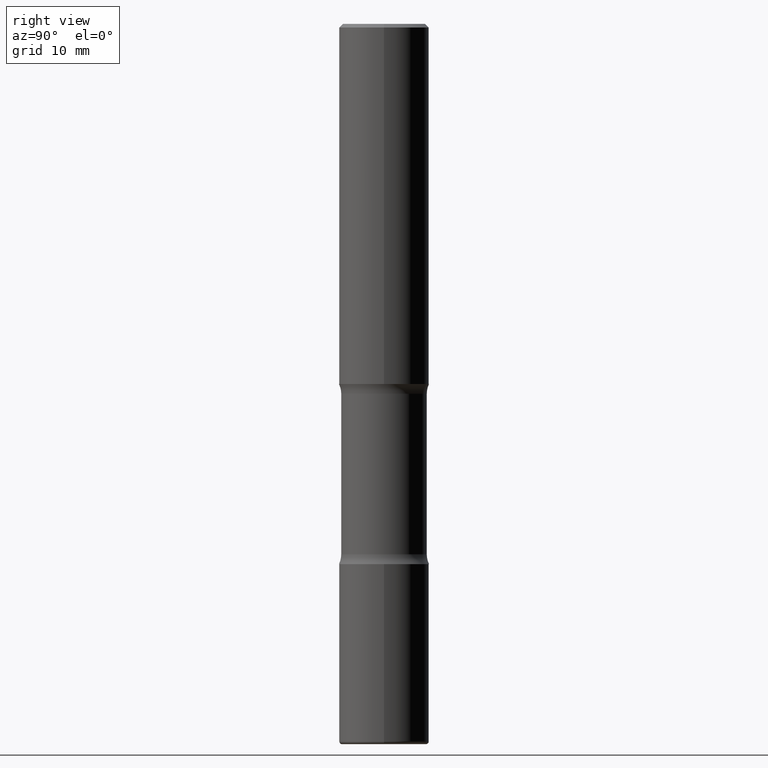
[diagram: clean part render]
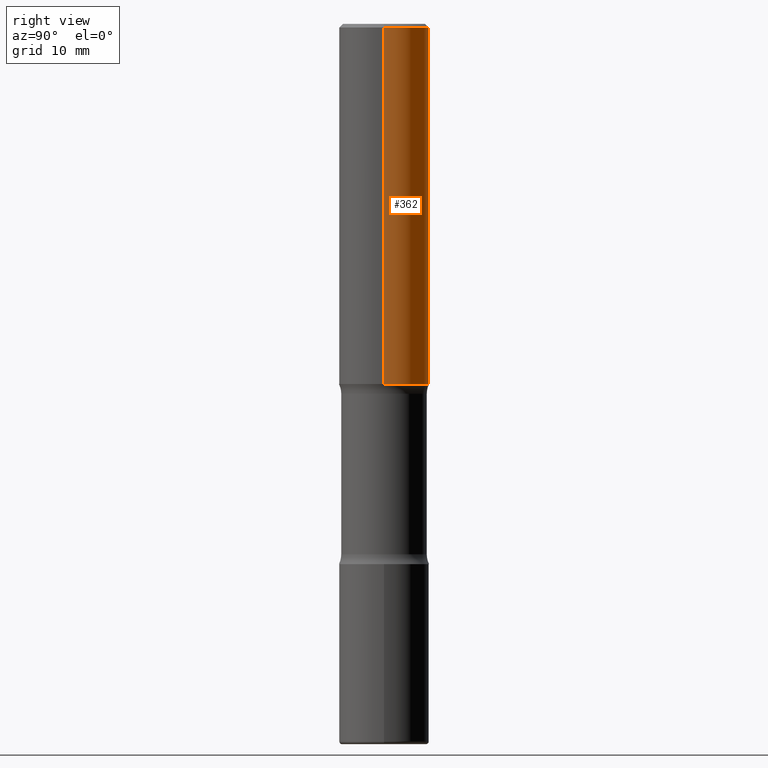
[diagram: same view with one face highlighted and labeled with its STEP entity id]
A machine part, right view. The second image highlights one B-rep face of the part: STEP entity #362.
In plain terms, the highlighted cylindrical surface (partial cylindrical patch) has radius 6.35 mm, axis along (-0, 0, 1).
Its self-contained STEP definition (entity closure, byte-faithful):
#6 = CARTESIAN_POINT ( 'NONE',  ( 4.890937612370289799E-31, -6.982962677686315028E-17, -0.02000000000000006981 ) ) ;
#9 = CARTESIAN_POINT ( 'NONE',  ( -0.2500000000000000555, 1.776356839400250859E-15, -1.229733772563726866E-29 ) ) ;
#12 = VERTEX_POINT ( 'NONE', #188 ) ;
#17 = ORIENTED_EDGE ( 'NONE', *, *, #351, .F. ) ;
#34 = CARTESIAN_POINT ( 'NONE',  ( 4.890937612370273194E-29, -6.982962677686291165E-15, -2.000000000000000000 ) ) ;
#41 = CARTESIAN_POINT ( 'NONE',  ( -0.2499999999999999167, 1.675911042644703182E-15, -0.02000000000000006981 ) ) ;
#74 = DIRECTION ( 'NONE',  ( 1.000000000000000000, -6.982962677686267499E-15, 4.876176775795935793E-29 ) ) ;
#98 = ORIENTED_EDGE ( 'NONE', *, *, #104, .T. ) ;
#104 = EDGE_CURVE ( 'NONE', #381, #523, #269, .T. ) ;
#116 = AXIS2_PLACEMENT_3D ( 'NONE', #34, #548, #501 ) ;
#124 = ORIENTED_EDGE ( 'NONE', *, *, #348, .F. ) ;
#128 = CARTESIAN_POINT ( 'NONE',  ( 0.2500000000000000555, -1.745740669421567269E-15, 1.219044193948984228E-29 ) ) ;
#134 = AXIS2_PLACEMENT_3D ( 'NONE', #6, #470, #296 ) ;
#155 = CARTESIAN_POINT ( 'NONE',  ( -0.2500000000000001665, -1.750039312831323809E-15, -2.000000000000000000 ) ) ;
#161 = FACE_OUTER_BOUND ( 'NONE', #173, .T. ) ;
#171 = CYLINDRICAL_SURFACE ( 'NONE', #397, 0.2500000000000000555 ) ;
#173 = EDGE_LOOP ( 'NONE', ( #98, #376, #17, #124 ) ) ;
#188 = CARTESIAN_POINT ( 'NONE',  ( 0.2499999999999999167, -1.784954126219745400E-15, -0.02000000000000006981 ) ) ;
#229 = VECTOR ( 'NONE', #247, 39.37007874015748143 ) ;
#241 = CARTESIAN_POINT ( 'NONE',  ( 0.000000000000000000, 0.000000000000000000, 0.000000000000000000 ) ) ;
#247 = DIRECTION ( 'NONE',  ( -2.445468806185136877E-29, 3.491481338843145188E-15, 1.000000000000000000 ) ) ;
#259 = LINE ( 'NONE', #9, #229 ) ;
#269 = CIRCLE ( 'NONE', #116, 0.2500000000000001665 ) ;
#289 = CARTESIAN_POINT ( 'NONE',  ( 0.2500000000000001665, -8.728703347107858632E-15, -2.000000000000000000 ) ) ;
#294 = EDGE_CURVE ( 'NONE', #523, #360, #259, .T. ) ;
#296 = DIRECTION ( 'NONE',  ( 1.000000000000000000, -6.982962677686267499E-15, 0.000000000000000000 ) ) ;
#320 = VECTOR ( 'NONE', #382, 39.37007874015748143 ) ;
#348 = EDGE_CURVE ( 'NONE', #381, #12, #522, .T. ) ;
#351 = EDGE_CURVE ( 'NONE', #12, #360, #361, .T. ) ;
#360 = VERTEX_POINT ( 'NONE', #41 ) ;
#361 = CIRCLE ( 'NONE', #134, 0.2499999999999999167 ) ;
#362 = ADVANCED_FACE ( 'NONE', ( #161 ), #171, .T. ) ;
#376 = ORIENTED_EDGE ( 'NONE', *, *, #294, .T. ) ;
#381 = VERTEX_POINT ( 'NONE', #289 ) ;
#382 = DIRECTION ( 'NONE',  ( -2.445468806185136877E-29, 3.491481338843145188E-15, 1.000000000000000000 ) ) ;
#397 = AXIS2_PLACEMENT_3D ( 'NONE', #241, #467, #74 ) ;
#467 = DIRECTION ( 'NONE',  ( -2.445468806185136597E-29, 3.491481338843145583E-15, 1.000000000000000000 ) ) ;
#470 = DIRECTION ( 'NONE',  ( -2.445468806185136597E-29, 3.491481338843145583E-15, 1.000000000000000000 ) ) ;
#501 = DIRECTION ( 'NONE',  ( 1.000000000000000000, -6.982962677686265922E-15, 0.000000000000000000 ) ) ;
#522 = LINE ( 'NONE', #128, #320 ) ;
#523 = VERTEX_POINT ( 'NONE', #155 ) ;
#548 = DIRECTION ( 'NONE',  ( -2.445468806185136597E-29, 3.491481338843145583E-15, 1.000000000000000000 ) ) ;